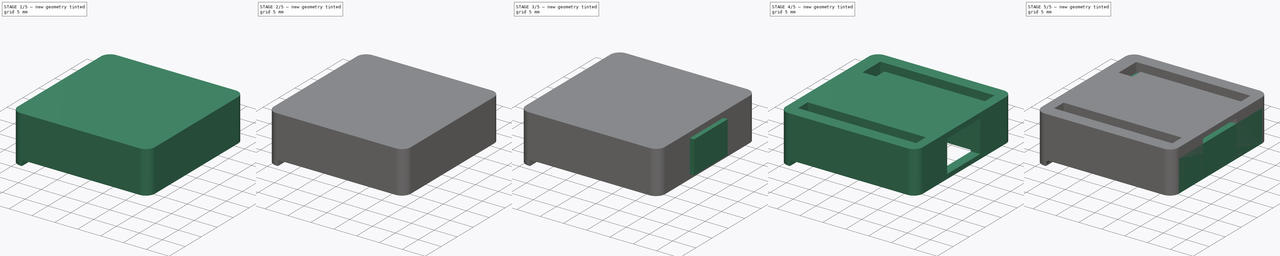
[diagram: build sequence overview — one tinted view per stage of 5, left to right]
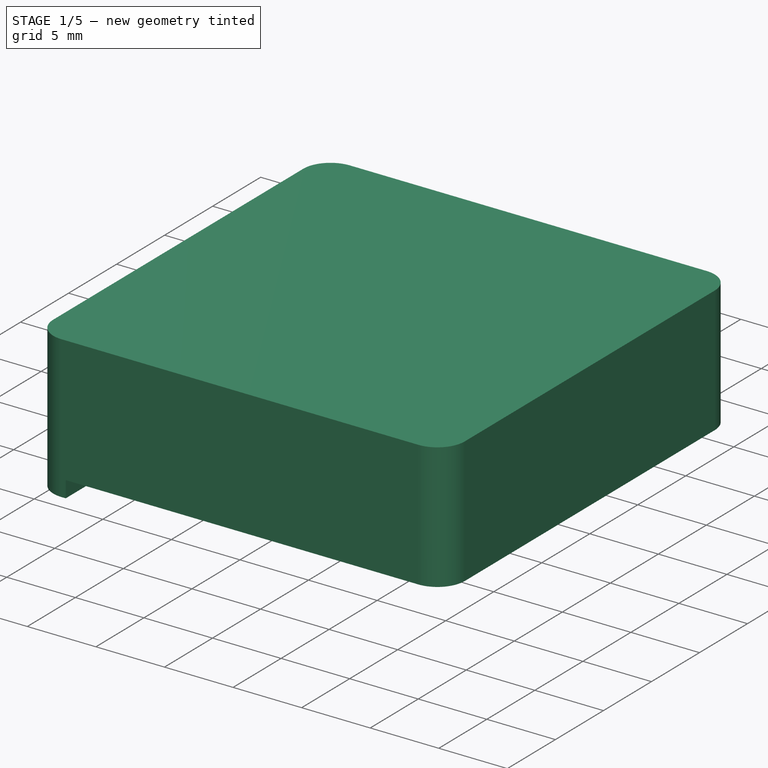
[diagram: stage 1 of 5 — iso view after this stage's code; geometry added in this stage tinted green]
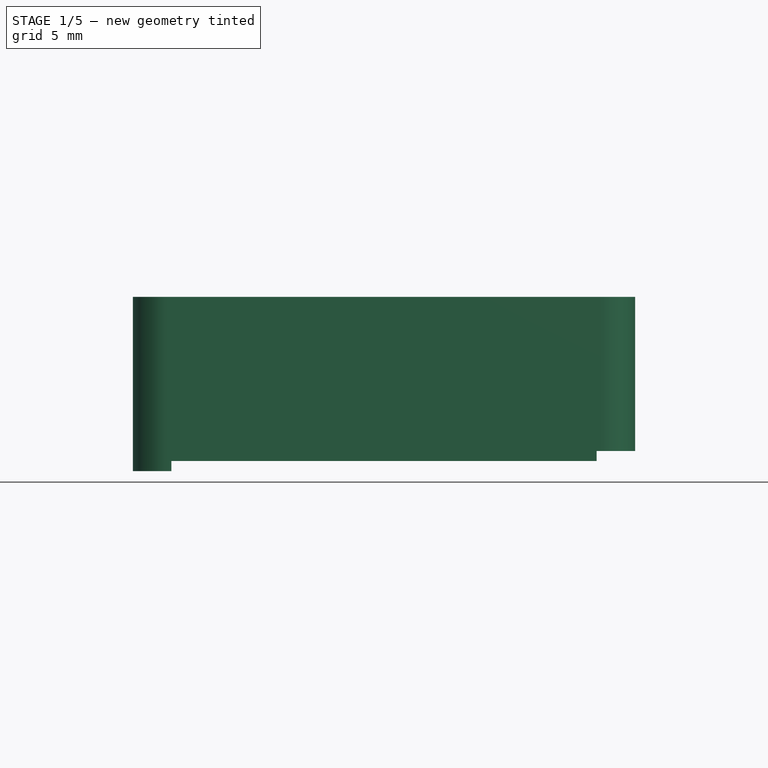
[diagram: stage 1 of 5 — front view after this stage's code; geometry added in this stage tinted green]
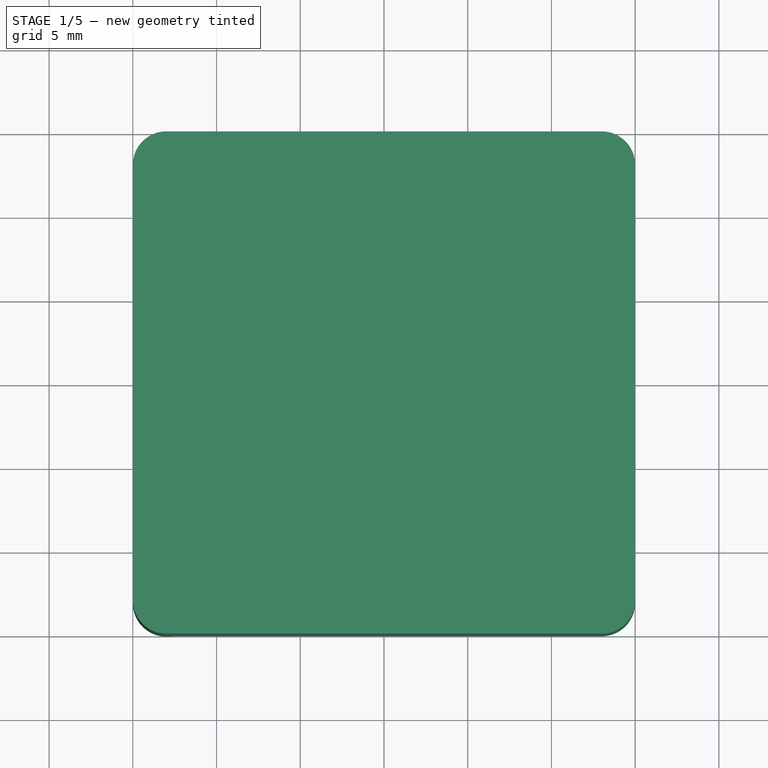
[diagram: stage 1 of 5 — top view after this stage's code; geometry added in this stage tinted green]
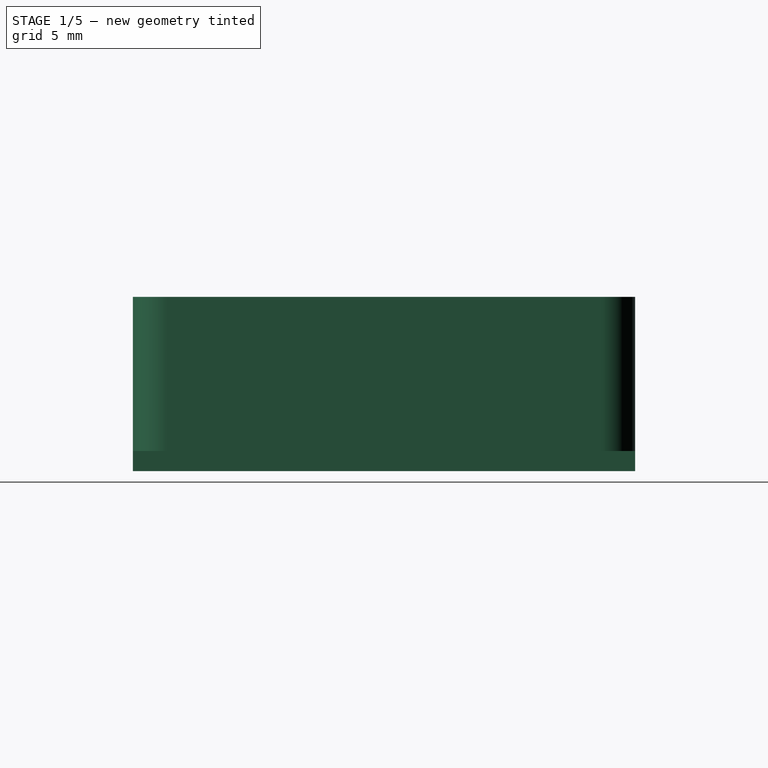
[diagram: stage 1 of 5 — right view after this stage's code; geometry added in this stage tinted green]
FCSTD DOCUMENT  (FreeCAD 0.16R)
Label: Pinguino_SMD-2550
License: All rights reserved
LicenseURL: http://en.wikipedia.org/wiki/All_rights_reserved
objects: Part::Feature×15, Sketcher::SketchObject×11, PartDesign::Pad×8, App::DocumentObjectGroup×2, Part::Extrusion×2, Part::Fillet×2, Part::Part2DObjectPython×1, Part::Offset×1, Part::MultiFuse×1, Part::Cut×1
note: 50 computed .brp shape members not serialized (recipe doc carries the construction recipe); baked Part::Feature solids carry a one-line shape summary decoded from their .brp

FEATURE [Part::Extrusion] Extrude001  label="Positivo"
  Base = -> Rectangle
  Dir = (0,0,9.2)
  Solid = true
FEATURE [Sketcher::SketchObject] Sketch003  label="cap"
  Placement = pos=(-43.18,33.528,0) rot=(0,0,1;0rad)
  Support = -> Pcb [Face27]
  sketch-geometry (16):
    g0: LineSegment StartX=42 StartY=-24.3 StartZ=0 EndX=45.4 EndY=-24.3 EndZ=0
    g1: LineSegment StartX=45.4 StartY=-24.3 StartZ=0 EndX=45.4 EndY=-26.1 EndZ=0
    g2: LineSegment StartX=45.4 StartY=-26.1 StartZ=0 EndX=42 EndY=-26.1 EndZ=0
    g3: LineSegment StartX=42 StartY=-26.1 StartZ=0 EndX=42 EndY=-24.3 EndZ=0
    g4: LineSegment StartX=50.2 StartY=-24.2 StartZ=0 EndX=46.8 EndY=-24.2 EndZ=0
    g5: LineSegment StartX=46.8 StartY=-24.2 StartZ=0 EndX=46.8 EndY=-26.1 EndZ=0
    g6: LineSegment StartX=46.8 StartY=-26.1 StartZ=0 EndX=50.2 EndY=-26.1 EndZ=0
    g7: LineSegment StartX=50.2 StartY=-26.1 StartZ=0 EndX=50.2 EndY=-24.2 EndZ=0
    g8: LineSegment StartX=35.4 StartY=-40.5 StartZ=0 EndX=38.8 EndY=-40.5 EndZ=0
    g9: LineSegment StartX=38.8 StartY=-40.5 StartZ=0 EndX=38.8 EndY=-42.3 EndZ=0
    g10: LineSegment StartX=38.8 StartY=-42.3 StartZ=0 EndX=35.4 EndY=-42.3 EndZ=0
    g11: LineSegment StartX=35.4 StartY=-42.3 StartZ=0 EndX=35.4 EndY=-40.5 EndZ=0
    g12: LineSegment StartX=51.8 StartY=-27.3 StartZ=0 EndX=55.2 EndY=-27.3 EndZ=0
    g13: LineSegment StartX=55.2 StartY=-27.3 StartZ=0 EndX=55.2 EndY=-25.5 EndZ=0
    g14: LineSegment StartX=55.2 StartY=-25.5 StartZ=0 EndX=51.8 EndY=-25.5 EndZ=0
    g15: LineSegment StartX=51.8 StartY=-25.5 StartZ=0 EndX=51.8 EndY=-27.3 EndZ=0
  constraints (32):
    c: Coincident(g0,g1)
    c: Coincident(g1,g2)
    c: Coincident(g2,g3)
    c: Coincident(g3,g0)
    c: Horizontal(g0)
    c: Horizontal(g2)
    c: Vertical(g1)
    c: Vertical(g3)
    c: Coincident(g4,g5)
    c: Coincident(g5,g6)
    c: Coincident(g6,g7)
    c: Coincident(g7,g4)
    c: Horizontal(g4)
    c: Horizontal(g6)
    c: Vertical(g5)
    c: Vertical(g7)
    c: Coincident(g8,g9)
    c: Coincident(g9,g10)
    c: Coincident(g10,g11)
    c: Coincident(g11,g8)
    c: Horizontal(g8)
    c: Horizontal(g10)
    c: Vertical(g9)
    c: Vertical(g11)
    c: Coincident(g12,g13)
    c: Coincident(g13,g14)
    c: Coincident(g14,g15)
    c: Coincident(g15,g12)
    c: Horizontal(g12)
    c: Horizontal(g14)
    c: Vertical(g13)
    c: Vertical(g15)
FEATURE [PartDesign::Pad] Pad
  Length = 1
  Length2 = 100
  Placement = pos=(-43.18,33.528,0) rot=(0,0,1;0rad)
  Sketch = -> Sketch003
  Type = 0
FEATURE [Sketcher::SketchObject] Sketch010
  ExternalGeometry = -> [Extrude001]
  Placement = pos=(0,0,-1) rot=(1,0,0;3.14159rad)
  Support = -> Extrude001 [Face9]
  sketch-geometry (6):
    g0: LineSegment StartX=-15 StartY=13 StartZ=0 EndX=-15 EndY=-13 EndZ=0
    g1: ArcOfCircle CenterX=-13 CenterY=-13 CenterZ=0 NormalX=0 NormalY=0 NormalZ=1 Radius=2 StartAngle=3.14159 EndAngle=4.71239
    g2: ArcOfCircle CenterX=-13 CenterY=13 CenterZ=0 NormalX=0 NormalY=0 NormalZ=1 Radius=2 StartAngle=1.5708 EndAngle=3.14159
    g3: LineSegment StartX=-13 StartY=15 StartZ=0 EndX=-12.7 EndY=15 EndZ=0
    g4: LineSegment StartX=-13 StartY=-15 StartZ=0 EndX=-12.7 EndY=-15 EndZ=0
    g5: LineSegment StartX=-12.7 StartY=-15 StartZ=0 EndX=-12.7 EndY=15 EndZ=0
  constraints (15):
    c: Coincident(g0,g-5)
    c: Coincident(g0,g-4)
    c: Coincident(g1,g-4)
    c: Coincident(g1,g0)
    c: Coincident(g1,g-4)
    c: Coincident(g2,g-5)
    c: Coincident(g2,g0)
    c: Coincident(g2,g-5)
    c: Coincident(g3,g2)
    c: Horizontal(g3)
    c: Coincident(g4,g1)
    c: Horizontal(g4)
    c: Coincident(g5,g4)
    c: Coincident(g5,g3)
    c: Vertical(g5)
FEATURE [PartDesign::Pad] Pad007  label="Positivo001"
  Length = 1.2
  Length2 = 100
  Sketch = -> Sketch010
  Type = 0
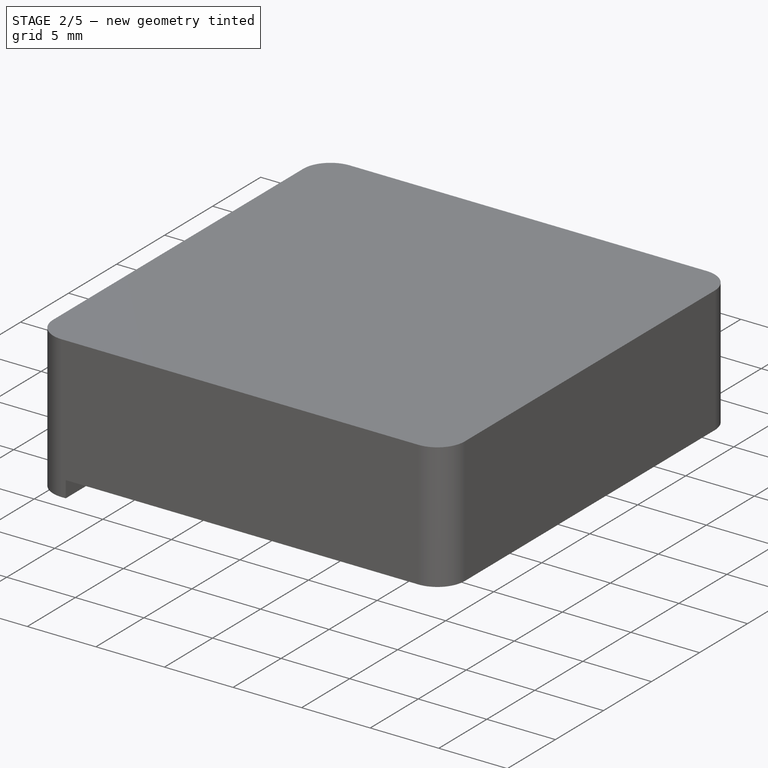
[diagram: stage 2 of 5 — iso view after this stage's code; geometry added in this stage tinted green]
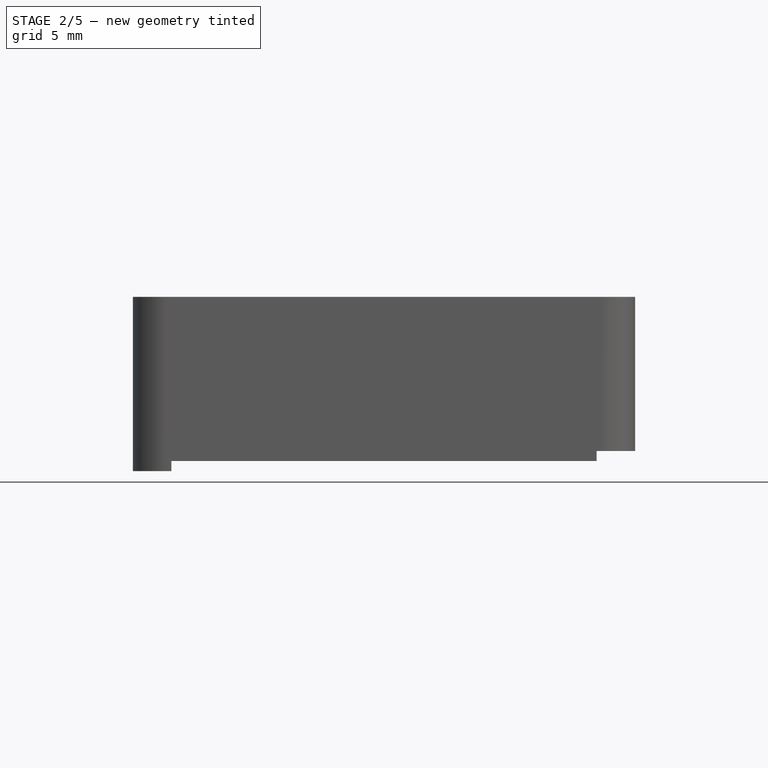
[diagram: stage 2 of 5 — front view after this stage's code; geometry added in this stage tinted green]
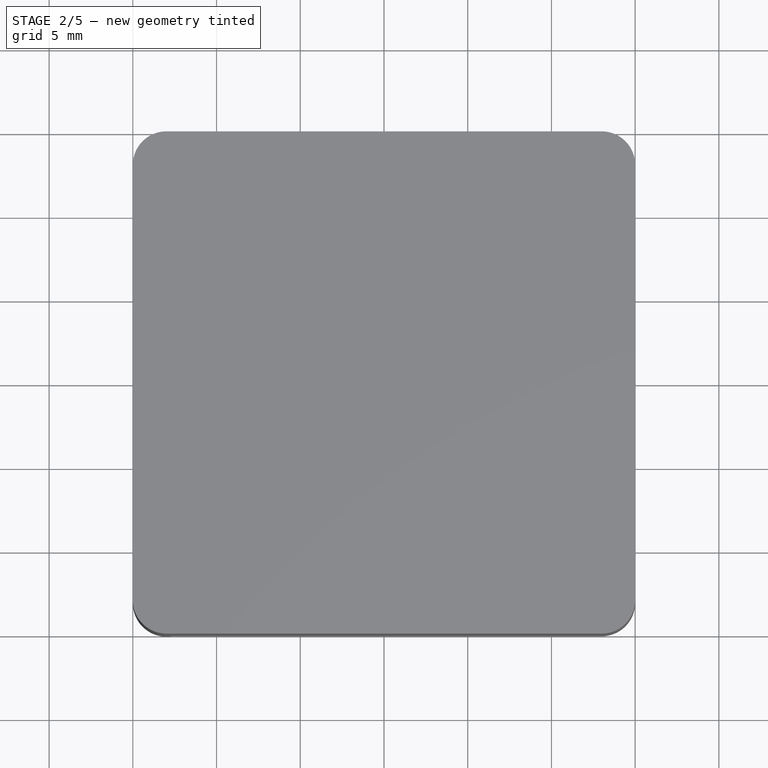
[diagram: stage 2 of 5 — top view after this stage's code; geometry added in this stage tinted green]
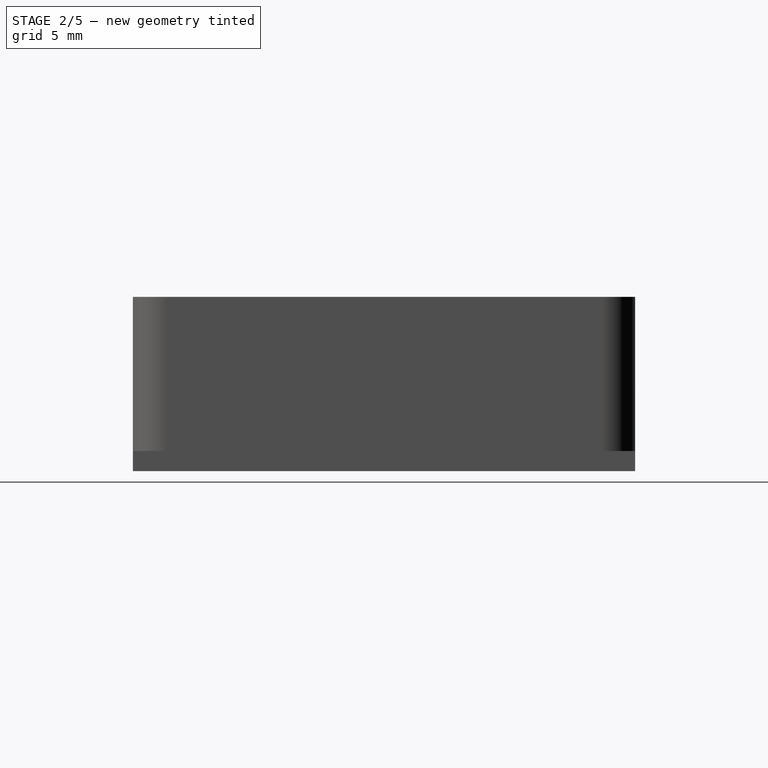
[diagram: stage 2 of 5 — right view after this stage's code; geometry added in this stage tinted green]
FEATURE [Sketcher::SketchObject] Sketch004  label="res"
  Placement = pos=(-43.18,33.528,0) rot=(0,0,1;0rad)
  Support = -> Pad [Face4]
  sketch-geometry (12):
    g0: LineSegment StartX=31.2 StartY=-28.5 StartZ=0 EndX=35.2 EndY=-28.5 EndZ=0
    g1: LineSegment StartX=35.2 StartY=-28.5 StartZ=0 EndX=35.2 EndY=-30.8 EndZ=0
    g2: LineSegment StartX=35.2 StartY=-30.8 StartZ=0 EndX=31.2 EndY=-30.8 EndZ=0
    g3: LineSegment StartX=31.2 StartY=-30.8 StartZ=0 EndX=31.2 EndY=-28.5 EndZ=0
    g4: LineSegment StartX=31.3 StartY=-32.1 StartZ=0 EndX=35.1 EndY=-32.1 EndZ=0
    g5: LineSegment StartX=35.1 StartY=-32.1 StartZ=0 EndX=35.1 EndY=-34.3 EndZ=0
    g6: LineSegment StartX=35.1 StartY=-34.3 StartZ=0 EndX=31.3 EndY=-34.3 EndZ=0
    g7: LineSegment StartX=31.3 StartY=-34.3 StartZ=0 EndX=31.3 EndY=-32.1 EndZ=0
    g8: LineSegment StartX=31.3 StartY=-35.9 StartZ=0 EndX=35.1 EndY=-35.9 EndZ=0
    g9: LineSegment StartX=35.1 StartY=-35.9 StartZ=0 EndX=35.1 EndY=-38.2 EndZ=0
    g10: LineSegment StartX=35.1 StartY=-38.2 StartZ=0 EndX=31.3 EndY=-38.2 EndZ=0
    g11: LineSegment StartX=31.3 StartY=-38.2 StartZ=0 EndX=31.3 EndY=-35.9 EndZ=0
  constraints (24):
    c: Coincident(g0,g1)
    c: Coincident(g1,g2)
    c: Coincident(g2,g3)
    c: Coincident(g3,g0)
    c: Horizontal(g0)
    c: Horizontal(g2)
    c: Vertical(g1)
    c: Vertical(g3)
    c: Coincident(g4,g5)
    c: Coincident(g5,g6)
    c: Coincident(g6,g7)
    c: Coincident(g7,g4)
    c: Horizontal(g4)
    c: Horizontal(g6)
    c: Vertical(g5)
    c: Vertical(g7)
    c: Coincident(g8,g9)
    c: Coincident(g9,g10)
    c: Coincident(g10,g11)
    c: Coincident(g11,g8)
    c: Horizontal(g8)
    c: Horizontal(g10)
    c: Vertical(g9)
    c: Vertical(g11)
FEATURE [PartDesign::Pad] Pad001
  Length = 1
  Length2 = 100
  Placement = pos=(-43.18,33.528,0) rot=(0,0,1;0rad)
  Sketch = -> Sketch004
  Type = 0
FEATURE [Sketcher::SketchObject] Sketch005  label="capa"
  Placement = pos=(-43.18,33.528,0) rot=(0,0,1;0rad)
  Support = -> Pad001 [Face4]
  sketch-geometry (1):
    g0: Circle CenterX=39.1493 CenterY=-33.2 CenterZ=0 NormalX=0 NormalY=0 NormalZ=1 Radius=4.54251
FEATURE [PartDesign::Pad] Pad002
  Length = 7
  Length2 = 100
  Placement = pos=(-43.18,33.528,0) rot=(0,0,1;0rad)
  Sketch = -> Sketch005
  Type = 0
FEATURE [Sketcher::SketchObject] Sketch006  label="crystal"
  Placement = pos=(-43.18,33.528,0) rot=(0,0,1;0rad)
  Support = -> Pad002 [Face4]
  sketch-geometry (4):
    g0: LineSegment StartX=42.8 StartY=-30.5 StartZ=0 EndX=46.5 EndY=-30.5 EndZ=0
    g1: LineSegment StartX=46.5 StartY=-30.5 StartZ=0 EndX=46.5 EndY=-35.9 EndZ=0
    g2: LineSegment StartX=46.5 StartY=-35.9 StartZ=0 EndX=42.8 EndY=-35.9 EndZ=0
    g3: LineSegment StartX=42.8 StartY=-35.9 StartZ=0 EndX=42.8 EndY=-30.5 EndZ=0
  constraints (8):
    c: Coincident(g0,g1)
    c: Coincident(g1,g2)
    c: Coincident(g2,g3)
    c: Coincident(g3,g0)
    c: Horizontal(g0)
    c: Horizontal(g2)
    c: Vertical(g1)
    c: Vertical(g3)
FEATURE [PartDesign::Pad] Pad003
  Length = 2
  Length2 = 100
  Placement = pos=(-43.18,33.528,0) rot=(0,0,1;0rad)
  Sketch = -> Sketch006
  Type = 0
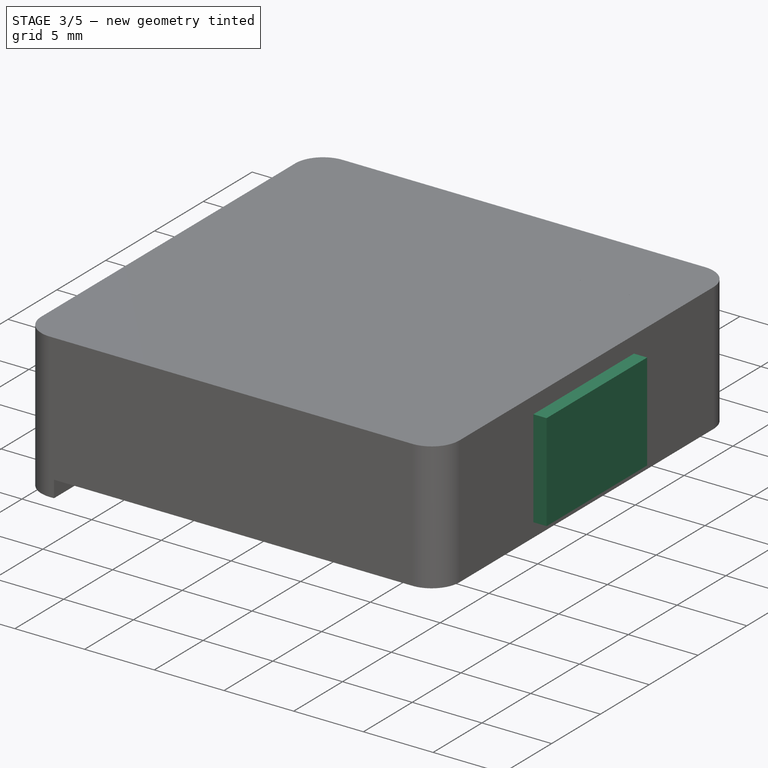
[diagram: stage 3 of 5 — iso view after this stage's code; geometry added in this stage tinted green]
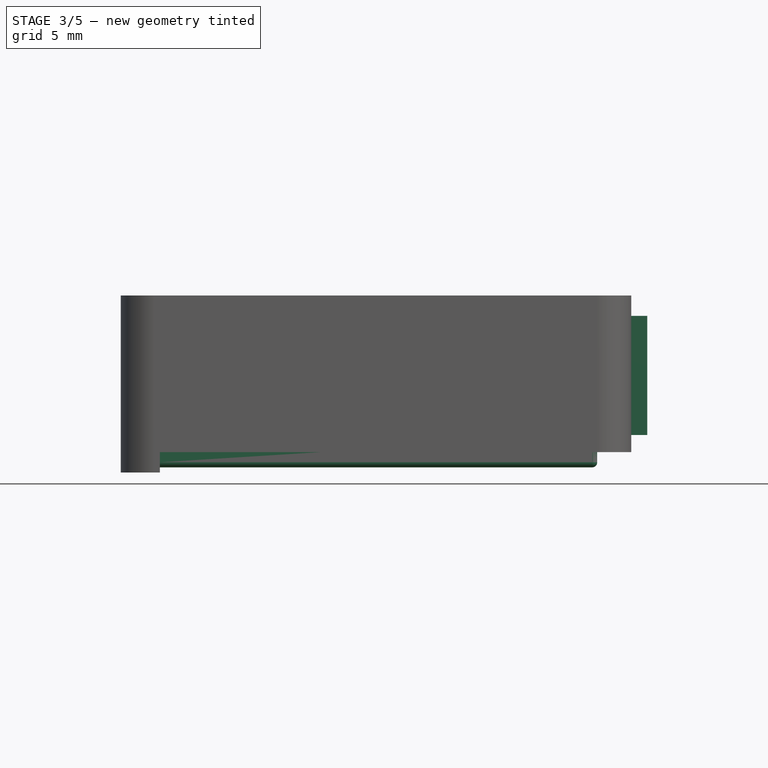
[diagram: stage 3 of 5 — front view after this stage's code; geometry added in this stage tinted green]
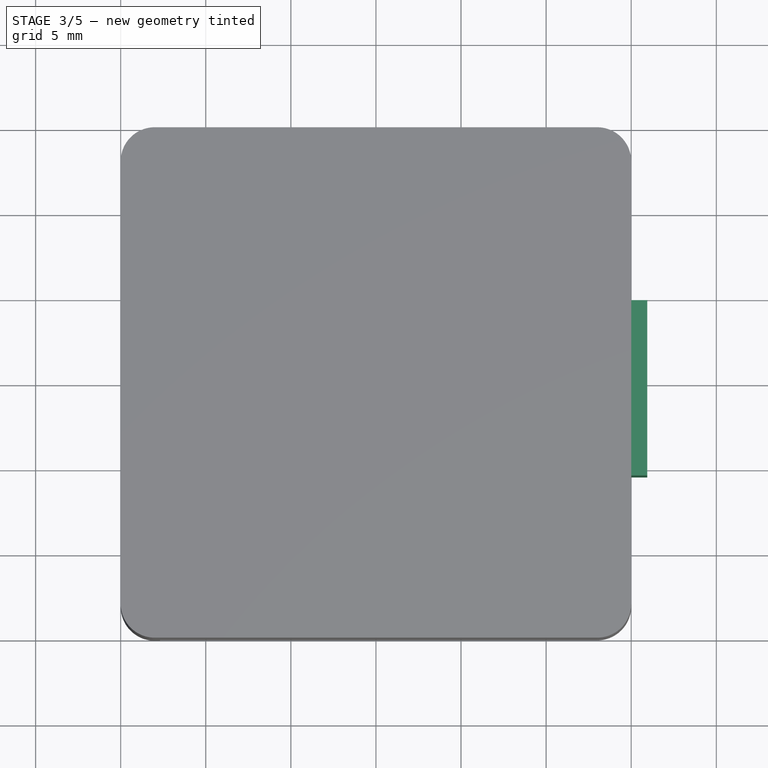
[diagram: stage 3 of 5 — top view after this stage's code; geometry added in this stage tinted green]
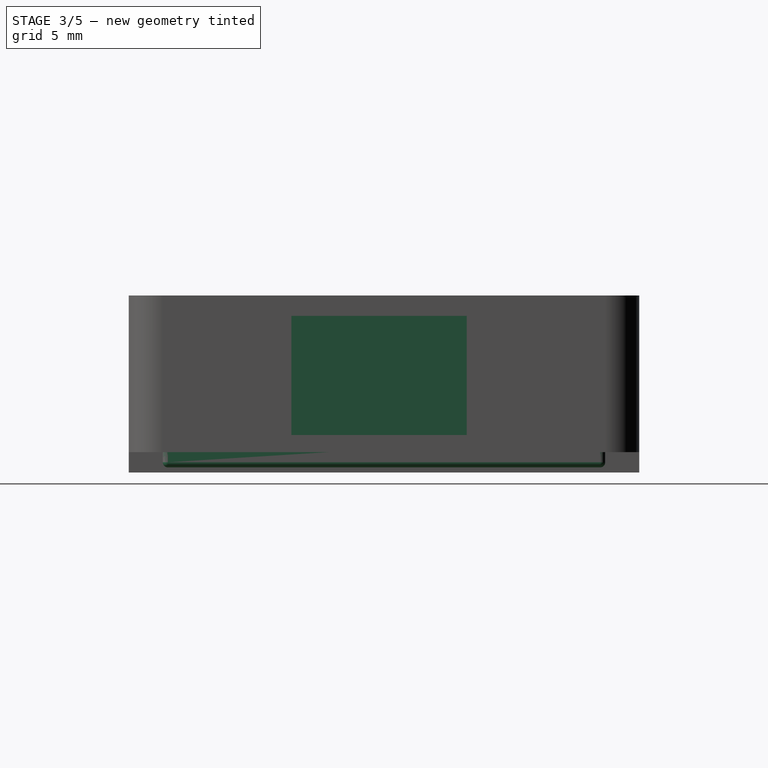
[diagram: stage 3 of 5 — right view after this stage's code; geometry added in this stage tinted green]
FEATURE [Part::Offset] Offset  label="Pcb-1_Inch-Offset"
  Fill = false
  Intersection = false
  Join = 0
  Mode = 0
  SelfIntersection = false
  Source = -> Pcb
  Value = 0.3
FEATURE [Sketcher::SketchObject] Sketch007  label="b_usb"
  Placement = pos=(-43.18,33.528,0) rot=(0,0,1;0rad)
  Support = -> Pad003 [Face4]
  sketch-geometry (4):
    g0: LineSegment StartX=47 StartY=-28.6679 StartZ=0 EndX=59.1258 EndY=-28.6679 EndZ=0
    g1: LineSegment StartX=59.1258 StartY=-28.6679 StartZ=0 EndX=59.1258 EndY=-38.9679 EndZ=0
    g2: LineSegment StartX=59.1258 StartY=-38.9679 StartZ=0 EndX=47 EndY=-38.9679 EndZ=0
    g3: LineSegment StartX=47 StartY=-38.9679 StartZ=0 EndX=47 EndY=-28.6679 EndZ=0
  constraints (8):
    c: Coincident(g0,g1)
    c: Coincident(g1,g2)
    c: Coincident(g2,g3)
    c: Coincident(g3,g0)
    c: Horizontal(g0)
    c: Horizontal(g2)
    c: Vertical(g1)
    c: Vertical(g3)
FEATURE [PartDesign::Pad] Pad004
  Length = 7
  Length2 = 100
  Placement = pos=(-43.18,33.528,0) rot=(0,0,1;0rad)
  Sketch = -> Sketch007
  Type = 0
FEATURE [Sketcher::SketchObject] Sketch008
  ExternalGeometry = -> [Pad004]
  Placement = pos=(-43.18,33.528,0) rot=(0,0,1;0rad)
  Support = -> Pad004 [Face4]
  sketch-geometry (39):
    g0: LineSegment [constr] StartX=31.8643 StartY=-44.323 StartZ=0 EndX=31.8643 EndY=-42.823 EndZ=0
    g1: LineSegment [constr] StartX=31.8643 StartY=-44.323 StartZ=0 EndX=31.8643 EndY=-45.823 EndZ=0
    g2: LineSegment [constr] StartX=31.8643 StartY=-44.323 StartZ=0 EndX=30.3643 EndY=-44.323 EndZ=0
    g3: LineSegment [constr] StartX=54.7243 StartY=-44.323 StartZ=0 EndX=54.7243 EndY=-42.823 EndZ=0
    g4: LineSegment [constr] StartX=54.7243 StartY=-44.323 StartZ=0 EndX=56.2243 EndY=-44.323 EndZ=0
    g5: LineSegment [constr] StartX=54.7243 StartY=-44.323 StartZ=0 EndX=54.7243 EndY=-45.823 EndZ=0
    g6: LineSegment [constr] StartX=32.639 StartY=-25.273 StartZ=0 EndX=32.639 EndY=-26.773 EndZ=0
    g7: LineSegment [constr] StartX=32.639 StartY=-25.273 StartZ=0 EndX=34.139 EndY=-25.273 EndZ=0
    g8: LineSegment [constr] StartX=32.639 StartY=-25.273 StartZ=0 EndX=31.139 EndY=-25.273 EndZ=0
    g9: LineSegment [constr] StartX=32.639 StartY=-22.733 StartZ=0 EndX=31.139 EndY=-22.733 EndZ=0
    g10: LineSegment [constr] StartX=32.639 StartY=-22.733 StartZ=0 EndX=32.639 EndY=-21.233 EndZ=0
    g11: LineSegment [constr] StartX=32.639 StartY=-22.733 StartZ=0 EndX=32.639 EndY=-24.233 EndZ=0
    g12: LineSegment [constr] StartX=54.6 StartY=-22.7208 StartZ=0 EndX=54.6 EndY=-21.2203 EndZ=0
    g13: LineSegment [constr] StartX=54.6 StartY=-22.7208 StartZ=0 EndX=56.1252 EndY=-22.7208 EndZ=0
    g14: LineSegment [constr] StartX=54.6 StartY=-22.7208 StartZ=0 EndX=54.6 EndY=-24.2297 EndZ=0
    g15: LineSegment StartX=30.3643 StartY=-44.323 StartZ=0 EndX=30.3643 EndY=-42.823 EndZ=0
    g16: LineSegment StartX=30.3643 StartY=-42.823 StartZ=0 EndX=31.8643 EndY=-42.823 EndZ=0
    g17: LineSegment StartX=31.8643 StartY=-42.823 StartZ=0 EndX=54.7243 EndY=-42.823 EndZ=0
    g18: LineSegment StartX=54.7243 StartY=-42.823 StartZ=0 EndX=56.2243 EndY=-42.823 EndZ=0
    g19: LineSegment StartX=56.2243 StartY=-42.823 StartZ=0 EndX=56.2243 EndY=-44.323 EndZ=0
    g20: LineSegment StartX=56.2243 StartY=-44.323 StartZ=0 EndX=56.2243 EndY=-45.823 EndZ=0
    g21: LineSegment StartX=56.2243 StartY=-45.823 StartZ=0 EndX=54.7243 EndY=-45.823 EndZ=0
    g22: LineSegment StartX=54.7243 StartY=-45.823 StartZ=0 EndX=31.8643 EndY=-45.823 EndZ=0
    g23: LineSegment StartX=31.8643 StartY=-45.823 StartZ=0 EndX=30.3643 EndY=-45.823 EndZ=0
    g24: LineSegment StartX=30.3643 StartY=-45.823 StartZ=0 EndX=30.3643 EndY=-44.323 EndZ=0
    g25: LineSegment StartX=32.639 StartY=-26.773 StartZ=0 EndX=31.139 EndY=-26.773 EndZ=0
    g26: LineSegment StartX=31.139 StartY=-26.773 StartZ=0 EndX=31.139 EndY=-25.273 EndZ=0
    g27: LineSegment StartX=31.139 StartY=-25.273 StartZ=0 EndX=31.139 EndY=-22.733 EndZ=0
    g28: LineSegment StartX=31.139 StartY=-22.733 StartZ=0 EndX=31.139 EndY=-21.233 EndZ=0
    g29: LineSegment StartX=31.139 StartY=-21.233 StartZ=0 EndX=32.639 EndY=-21.233 EndZ=0
    g30: LineSegment StartX=32.639 StartY=-21.233 StartZ=0 EndX=54.5973 EndY=-21.2203 EndZ=0
    g31: LineSegment StartX=54.5973 StartY=-21.2203 StartZ=0 EndX=56.1252 EndY=-21.2203 EndZ=0
    g32: LineSegment StartX=56.1252 StartY=-21.2203 StartZ=0 EndX=56.1252 EndY=-22.7208 EndZ=0
    g33: LineSegment StartX=56.1252 StartY=-22.7208 StartZ=0 EndX=56.1252 EndY=-24.2297 EndZ=0
    g34: LineSegment StartX=56.1252 StartY=-24.2297 StartZ=0 EndX=54.6 EndY=-24.2297 EndZ=0
    g35: LineSegment StartX=54.6 StartY=-24.2297 StartZ=0 EndX=34.139 EndY=-24.2297 EndZ=0
    g36: LineSegment StartX=34.139 StartY=-24.2297 StartZ=0 EndX=34.139 EndY=-25.273 EndZ=0
    g37: LineSegment StartX=34.139 StartY=-25.273 StartZ=0 EndX=34.139 EndY=-26.773 EndZ=0
    g38: LineSegment StartX=34.139 StartY=-26.773 StartZ=0 EndX=32.639 EndY=-26.773 EndZ=0
  constraints (86):
    c: Vertical(g0)
    c: Coincident(g0,g-3)
    c: Coincident(g1,g0)
    c: Vertical(g1)
    c: Coincident(g2,g0)
    c: Horizontal(g2)
    c: Coincident(g3,g-4)
    c: Vertical(g3)
    c: Coincident(g4,g3)
    c: Horizontal(g4)
    c: Coincident(g5,g3)
    c: Vertical(g5)
    c: Vertical(g6)
    c: Coincident(g7,g6)
    c: Horizontal(g7)
    c: Horizontal(g8)
    c: Horizontal(g9)
    c: Vertical(g10)
    c: Coincident(g11,g9)
    c: Vertical(g11)
    c: Vertical(g12)
    c: Coincident(g13,g12)
    c: Horizontal(g13)
    c: Coincident(g14,g12)
    c: Vertical(g14)
    c: DistanceY(g0,g0) = 1.5
    c: Equal(g0,g2)
    c: Equal(g2,g1)
    c: Equal(g1,g5)
    c: Equal(g5,g4)
    c: Equal(g4,g3)
    c: Equal(g3,g7)
    c: Equal(g7,g6)
    c: Equal(g6,g8)
    c: Coincident(g2,g15)
    c: Vertical(g15)
    c: Coincident(g15,g16)
    c: Coincident(g16,g0)
    c: Horizontal(g16)
    c: Coincident(g16,g17)
    c: Coincident(g17,g3)
    c: Coincident(g17,g18)
    c: Horizontal(g18)
    c: Coincident(g18,g19)
    c: Coincident(g19,g4)
    c: Vertical(g19)
    c: Coincident(g19,g20)
    c: Vertical(g20)
    c: Coincident(g20,g21)
    c: Coincident(g21,g5)
    c: Horizontal(g21)
    c: Coincident(g21,g22)
    c: Coincident(g22,g1)
    c: Coincident(g22,g23)
    c: Horizontal(g23)
    c: Coincident(g23,g24)
    c: Coincident(g24,g15)
    c: Vertical(g24)
    c: Coincident(g6,g25)
    c: Horizontal(g25)
    c: Coincident(g25,g26)
    c: Vertical(g26)
    c: Coincident(g27,g28)
    c: Vertical(g28)
    c: Coincident(g28,g29)
    c: Horizontal(g29)
    c: Coincident(g30,g31)
    c: Horizontal(g31)
    c: Coincident(g31,g32)
    c: Coincident(g32,g13)
    c: Vertical(g32)
    c: Coincident(g32,g33)
    c: Vertical(g33)
    c: Coincident(g33,g34)
    c: Coincident(g34,g14)
    c: Horizontal(g34)
    c: Coincident(g34,g35)
    c: Horizontal(g35)
    c: Coincident(g35,g36)
    c: Coincident(g36,g7)
    c: Vertical(g36)
    c: Coincident(g36,g37)
    c: Vertical(g37)
    c: Coincident(g37,g38)
    c: Coincident(g38,g25)
    c: Horizontal(g38)
FEATURE [PartDesign::Pad] Pad005
  Length = 8.2
  Length2 = 100
  Placement = pos=(-43.18,33.528,0) rot=(0,0,1;0rad)
  Sketch = -> Sketch008
  Type = 0
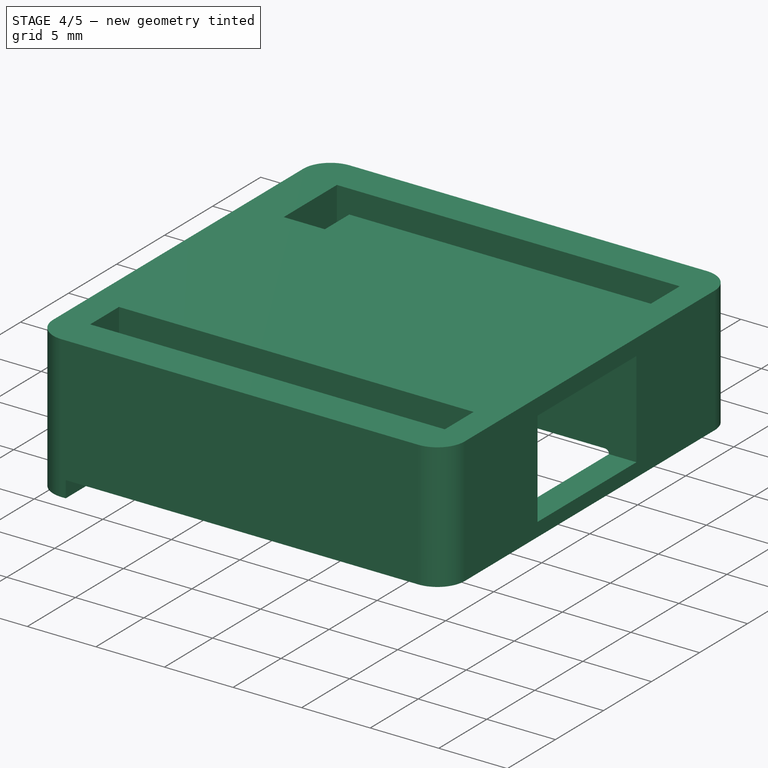
[diagram: stage 4 of 5 — iso view after this stage's code; geometry added in this stage tinted green]
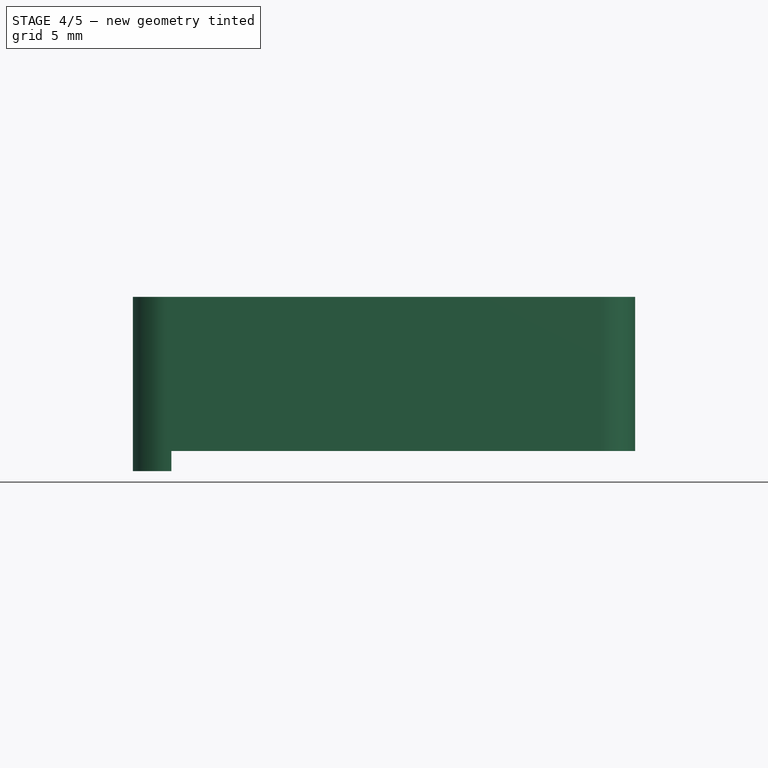
[diagram: stage 4 of 5 — front view after this stage's code; geometry added in this stage tinted green]
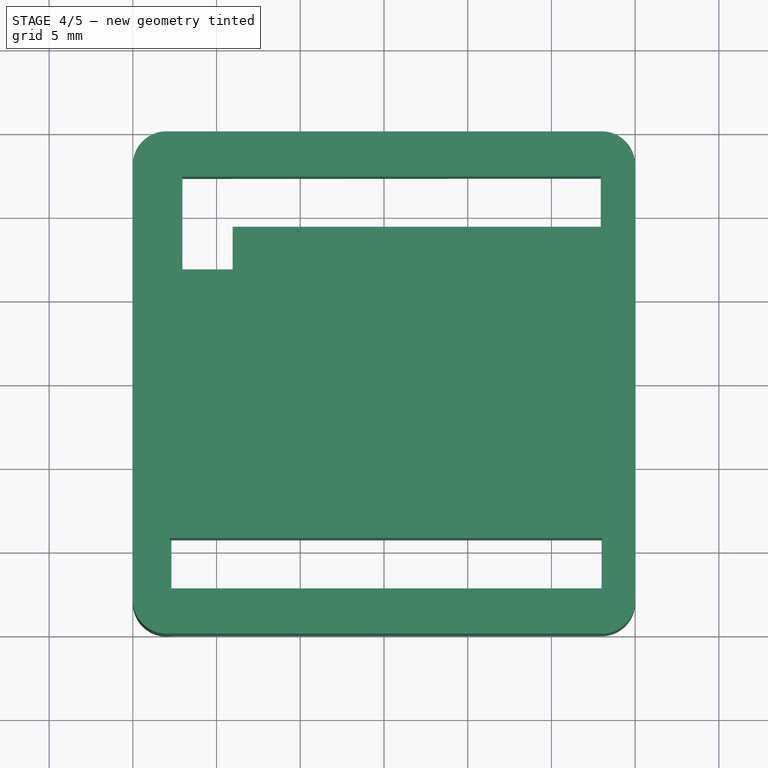
[diagram: stage 4 of 5 — top view after this stage's code; geometry added in this stage tinted green]
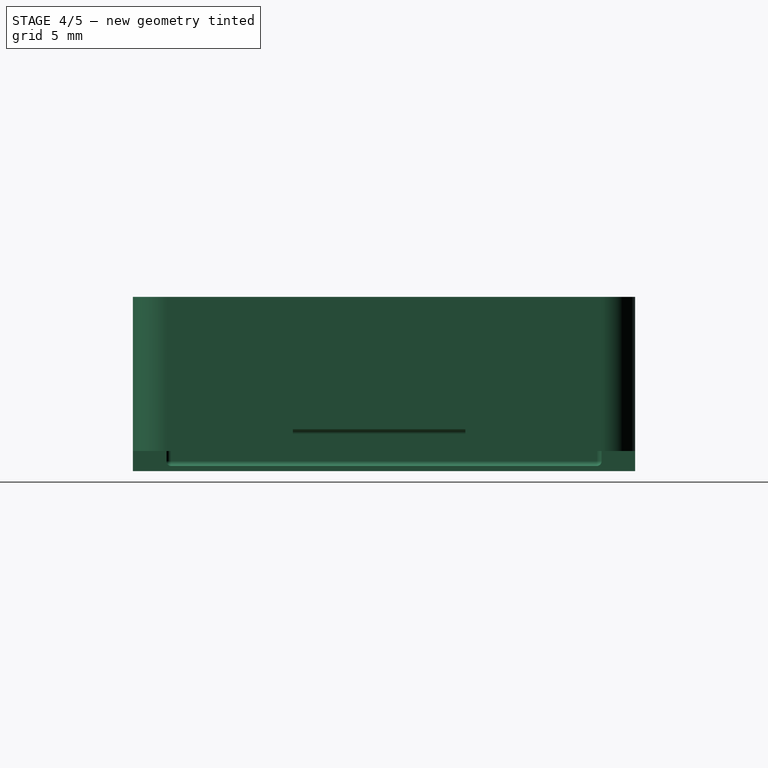
[diagram: stage 4 of 5 — right view after this stage's code; geometry added in this stage tinted green]
FEATURE [Part::MultiFuse] Fusion  label="Neg"
  Shapes = -> [Offset,Pad005]
FEATURE [App::DocumentObjectGroup] Board_Geoms
  Group = -> [Pcb,Sketch,Sketch001,Sketch002,Pad,Pad001,Pad002,Pad003,Pad004,Fusion]
FEATURE [Sketcher::SketchObject] Sketch009  label="tapar_agujeros"
  ExternalGeometry = -> [Fusion]
  Placement = pos=(0,0,-1.9) rot=(1,0,0;3.14159rad)
  Support = -> Fusion [Face3]
  sketch-geometry (22):
    g0: Circle CenterX=7.74446 CenterY=2.18186 CenterZ=0 NormalX=0 NormalY=0 NormalZ=1 Radius=0.44958
    g1: Circle CenterX=7.74446 CenterY=-2.21742 CenterZ=0 NormalX=0 NormalY=0 NormalZ=1 Radius=0.44958
    g2: Circle CenterX=-11.3157 CenterY=10.795 CenterZ=0 NormalX=0 NormalY=0 NormalZ=1 Radius=0.508
    g3: Circle CenterX=-8.7757 CenterY=10.795 CenterZ=0 NormalX=0 NormalY=0 NormalZ=1 Radius=0.508
    g4: Circle CenterX=-6.2357 CenterY=10.795 CenterZ=0 NormalX=0 NormalY=0 NormalZ=1 Radius=0.508
    g5: Circle CenterX=-3.6957 CenterY=10.795 CenterZ=0 NormalX=0 NormalY=0 NormalZ=1 Radius=0.508
    g6: Circle CenterX=-1.1557 CenterY=10.795 CenterZ=0 NormalX=0 NormalY=0 NormalZ=1 Radius=0.508
    g7: Circle CenterX=1.3843 CenterY=10.795 CenterZ=0 NormalX=0 NormalY=0 NormalZ=1 Radius=0.508
    g8: Circle CenterX=3.9243 CenterY=10.795 CenterZ=0 NormalX=0 NormalY=0 NormalZ=1 Radius=0.508
    g9: Circle CenterX=6.4643 CenterY=10.795 CenterZ=0 NormalX=0 NormalY=0 NormalZ=1 Radius=0.508
    g10: Circle CenterX=9.0043 CenterY=10.795 CenterZ=0 NormalX=0 NormalY=0 NormalZ=1 Radius=0.508
    g11: Circle CenterX=11.5443 CenterY=10.795 CenterZ=0 NormalX=0 NormalY=0 NormalZ=1 Radius=0.508
    g12: Circle CenterX=-10.541 CenterY=-8.255 CenterZ=0 NormalX=0 NormalY=0 NormalZ=1 Radius=0.508
    g13: Circle CenterX=-10.541 CenterY=-10.795 CenterZ=0 NormalX=0 NormalY=0 NormalZ=1 Radius=0.508
    g14: Circle CenterX=-6.3627 CenterY=-10.8077 CenterZ=0 NormalX=0 NormalY=0 NormalZ=1 Radius=0.508
    g15: Circle CenterX=-3.8227 CenterY=-10.8077 CenterZ=0 NormalX=0 NormalY=0 NormalZ=1 Radius=0.508
    g16: Circle CenterX=-1.2827 CenterY=-10.8077 CenterZ=0 NormalX=0 NormalY=0 NormalZ=1 Radius=0.508
    g17: Circle CenterX=1.2573 CenterY=-10.8077 CenterZ=0 NormalX=0 NormalY=0 NormalZ=1 Radius=0.508
    g18: Circle CenterX=3.7973 CenterY=-10.8077 CenterZ=0 NormalX=0 NormalY=0 NormalZ=1 Radius=0.508
    g19: Circle CenterX=6.3373 CenterY=-10.8077 CenterZ=0 NormalX=0 NormalY=0 NormalZ=1 Radius=0.508
    g20: Circle CenterX=8.8773 CenterY=-10.8077 CenterZ=0 NormalX=0 NormalY=0 NormalZ=1 Radius=0.508
    g21: Circle CenterX=11.4173 CenterY=-10.8077 CenterZ=0 NormalX=0 NormalY=0 NormalZ=1 Radius=0.508
  constraints (44):
    c: Coincident(g0,g-13)
    c: Equal(g-13,g0)
    c: Coincident(g1,g-14)
    c: Coincident(g2,g-3)
    c: Coincident(g3,g-4)
    c: Coincident(g4,g-5)
    c: Coincident(g5,g-6)
    c: Coincident(g6,g-7)
    c: Coincident(g7,g-8)
    c: Coincident(g8,g-9)
    c: Coincident(g9,g-10)
    c: Coincident(g10,g-11)
    c: Coincident(g11,g-12)
    c: Coincident(g12,g-15)
    c: Coincident(g13,g-16)
    c: Coincident(g14,g-17)
    c: Coincident(g15,g-18)
    c: Coincident(g16,g-19)
    c: Coincident(g17,g-20)
    c: Coincident(g18,g-21)
    c: Coincident(g19,g-22)
    c: Coincident(g20,g-23)
    c: Coincident(g21,g-24)
    c: Equal(g0,g1)
    c: Equal(g2,g-3)
    c: Equal(g-4,g3)
    c: Equal(g-5,g4)
    c: Equal(g-6,g5)
    c: Equal(g-7,g6)
    c: Equal(g-8,g7)
    c: Equal(g-9,g8)
    c: Equal(g-10,g9)
    c: Equal(g-11,g10)
    c: Equal(g-12,g11)
    c: Equal(g12,g-15)
    c: Equal(g-16,g13)
    c: Equal(g-17,g14)
    c: Equal(g-18,g15)
    c: Equal(g-19,g16)
    c: Equal(g-20,g17)
    c: Equal(g-21,g18)
    c: Equal(g-22,g19)
    c: Equal(g-23,g20)
    c: Equal(g-24,g21)
FEATURE [PartDesign::Pad] Pad006  label="Negativo"
  Length = 3
  Length2 = 100
  Reversed = true
  Sketch = -> Sketch009
  Type = 0
FEATURE [Part::Cut] Cut  label="Case1"
  Base = -> Pad007
  Tool = -> Pad006
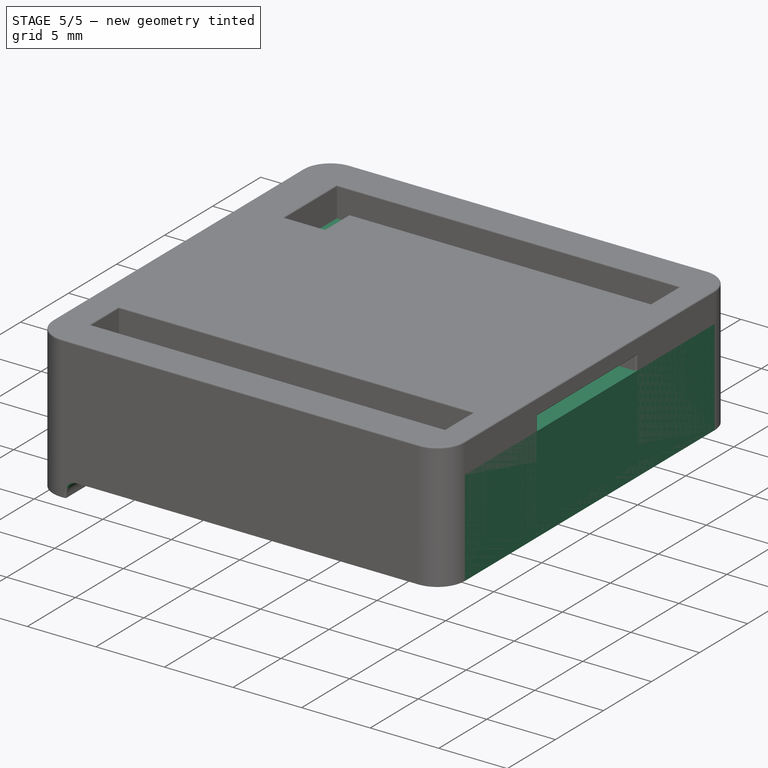
[diagram: stage 5 of 5 — iso view after this stage's code; geometry added in this stage tinted green]
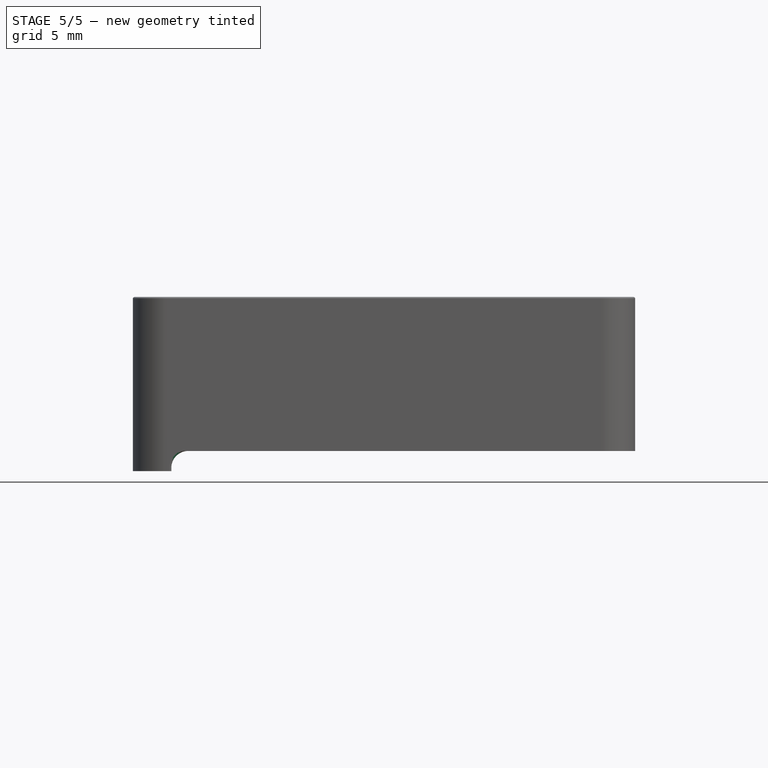
[diagram: stage 5 of 5 — front view after this stage's code; geometry added in this stage tinted green]
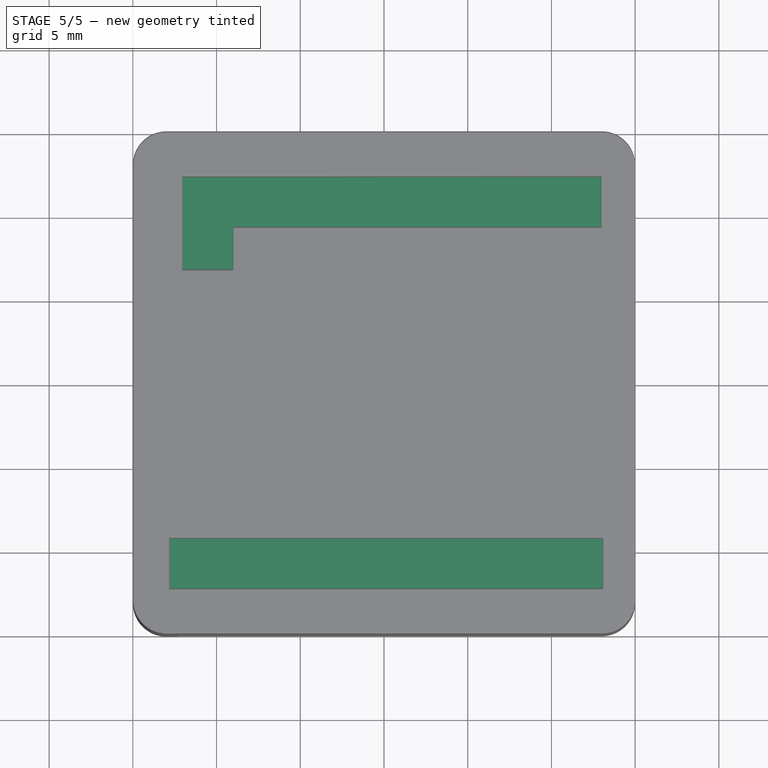
[diagram: stage 5 of 5 — top view after this stage's code; geometry added in this stage tinted green]
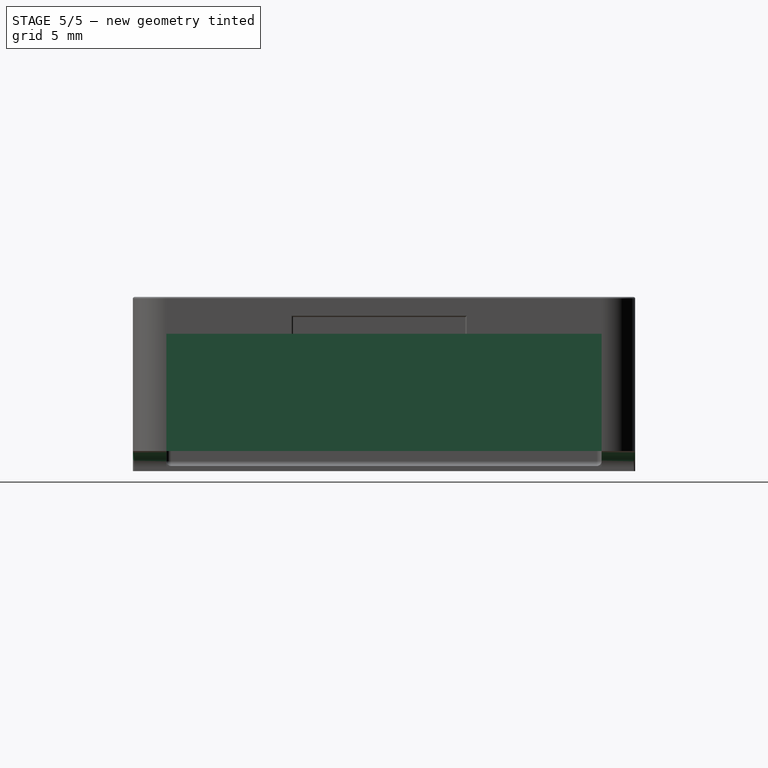
[diagram: stage 5 of 5 — right view after this stage's code; geometry added in this stage tinted green]
FEATURE [Part::Feature] Pcb  label="Pcb-1_Inch"
  Placement = pos=(-43.18,33.528,0) rot=(0,0,1;0rad)
  shape: bbox 25.4 x 25.4 x 1.602 mm, 28 faces (baked)
FEATURE [Part::Feature] Shape  label="switch-"
  Placement = pos=(-9.906,0,-1.6) rot=(0.707107,0.707107,0;3.14159rad)
  shape: bbox 3.6 x 8 x 2.5 mm, 86 faces (baked)
FEATURE [Part::Feature] Shape001  label="Crystal-5035"
  Placement = pos=(1.4605,0.3175,0) rot=(0,0,1;1.5708rad)
  shape: bbox 3.2 x 5 x 1.3 mm, 55 faces (baked)
FEATURE [Part::Feature] Shape002  label="c_1206_h078_"
  Placement = pos=(0.5588,8.3439,0) rot=(0,0,1;3.14159rad)
  shape: bbox 3.05 x 1.52 x 0.78 mm, 28 faces (baked)
FEATURE [Part::Feature] Shape003  label="c_1206_h078_001"
  Placement = pos=(5.2959,8.3693,0) rot=(0,0,1;0rad)
  shape: bbox 3.05 x 1.52 x 0.78 mm, 28 faces (baked)
FEATURE [Part::Feature] Shape004  label="c_1206_h078_002"
  Placement = pos=(10.2997,7.1374,0) rot=(0,0,1;3.14159rad)
  shape: bbox 3.05 x 1.52 x 0.78 mm, 28 faces (baked)
FEATURE [Part::Feature] Shape005  label="c_1206_h078_003"
  Placement = pos=(-6.072,-7.874,0) rot=(0,0,1;0rad)
  shape: bbox 3.05 x 1.52 x 0.78 mm, 28 faces (baked)
FEATURE [Part::Feature] Shape006  label="Led2-0805"
  Placement = pos=(-9.97902,5.528,-1.6) rot=(0,1,0;3.14159rad)
  shape: bbox 2.063 x 0.9063 x 0.8438 mm, 30 faces (baked)
FEATURE [Part::Feature] Shape007  label="Led1-0805"
  Placement = pos=(-9.93,-5.622,-1.6) rot=(1,0,0;3.14159rad)
  shape: bbox 2.063 x 0.9063 x 0.8438 mm, 30 faces (baked)
FEATURE [Part::Feature] Shape009  label="r_1206_h055_"
  Placement = pos=(-9.97204,0.3302,0) rot=(0,0,1;0rad)
  shape: bbox 3.2 x 1.6 x 0.55 mm, 28 faces (baked)
FEATURE [Part::Feature] Shape010  label="r_1206_h055_001"
  Placement = pos=(-9.9568,3.8862,0) rot=(0,0,1;0rad)
  shape: bbox 3.2 x 1.6 x 0.55 mm, 28 faces (baked)
FEATURE [Part::Feature] Shape011  label="r_1206"
  Placement = pos=(-9.9568,-3.556,0) rot=(0,0,1;0rad)
  shape: bbox 3.2 x 1.6 x 0.55 mm, 28 faces (baked)
FEATURE [Part::Feature] Shape012  label="PIC18F4550_SOIC"
  Placement = pos=(2.032,0,-1.6) rot=(1,0,0;3.14159rad)
  shape: bbox 18.42 x 11.18 x 3.505 mm, 402 faces (baked)
FEATURE [Part::Feature] Shape013  label="Capa-6x5"
  Placement = pos=(-4.0132,0.26162,0) rot=(0,0,-1;1.5708rad)
  shape: bbox 8.603 x 8.606 x 5.4 mm, 45 faces (baked)
FEATURE [Part::Feature] Shape018  label="USB-micro_B"
  shape: bbox 9 x 9.9 x 3.967 mm, 543 faces (baked)
FEATURE [App::DocumentObjectGroup] Step_Models
  Group = -> [Shape,Shape001,Shape002,Shape003,Shape004,Shape005,Shape006,Shape007,Shape009,Shape010,Shape011,Shape012,Shape013,Shape018]
FEATURE [Sketcher::SketchObject] Sketch
  Placement = pos=(-43.18,33.528,0) rot=(0,0,1;0rad)
  Support = -> Pcb [Face27]
FEATURE [Sketcher::SketchObject] Sketch001
  Placement = pos=(-43.18,33.528,0) rot=(0,0,1;0rad)
  Support = -> Pcb [Face27]
FEATURE [Sketcher::SketchObject] Sketch002
  Placement = pos=(-43.18,33.528,0) rot=(0,0,1;0rad)
  Support = -> Pcb [Face27]
FEATURE [Part::Part2DObjectPython] Rectangle  # Draft 2D object (typed FeaturePython)
  ChamferSize = 0
  Columns = 1
  FilletRadius = 2
  Height = -30
  Length = 30
  MakeFace = true
  Placement = pos=(-15,15,-1) rot=(0,0,1;0rad)
  Rows = 1
FEATURE [Part::Extrusion] Extrude
  Base = -> Rectangle
  Dir = (0,0,7)
  Solid = true
FEATURE [Part::Fillet] Fillet
  Base = -> Cut
  Edges = 2 edges r=1: [Edge81,Edge87]
FEATURE [Part::Fillet] Fillet001  label="Case-Pinguino_SMD-2550"
  Base = -> Fillet
  Edges = 21 edges r=0.1: [Edge11,Edge34,Edge35,Edge39,Edge40,Edge41,Edge42,Edge43,Edge44,Edge46,Edge47,Edge48,Edge49,Edge50,Edge60,Edge61,Edge62,Edge63,Edge129,Edge138,Edge153]
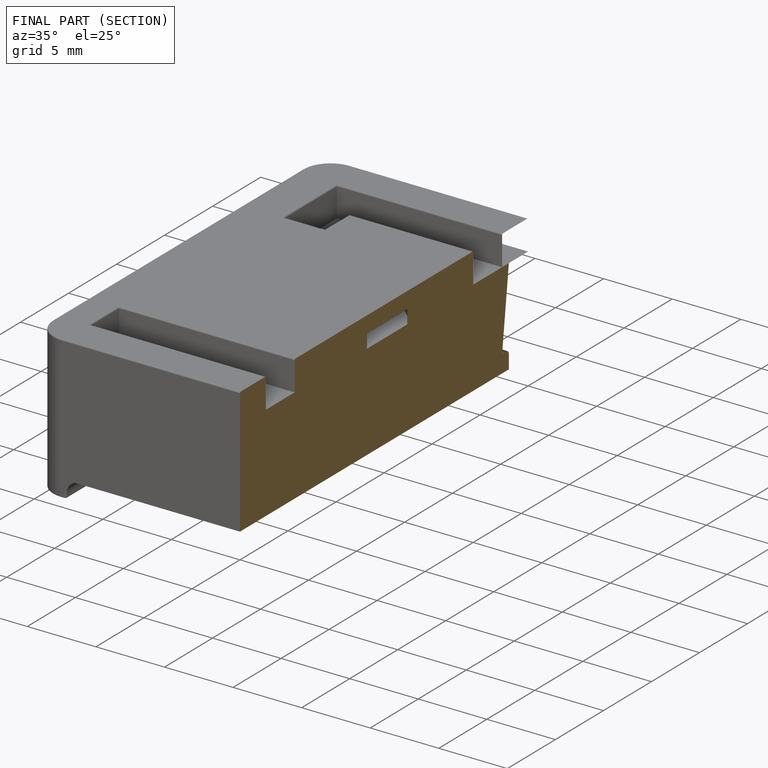
[diagram: finished part — half-section view (interior)]
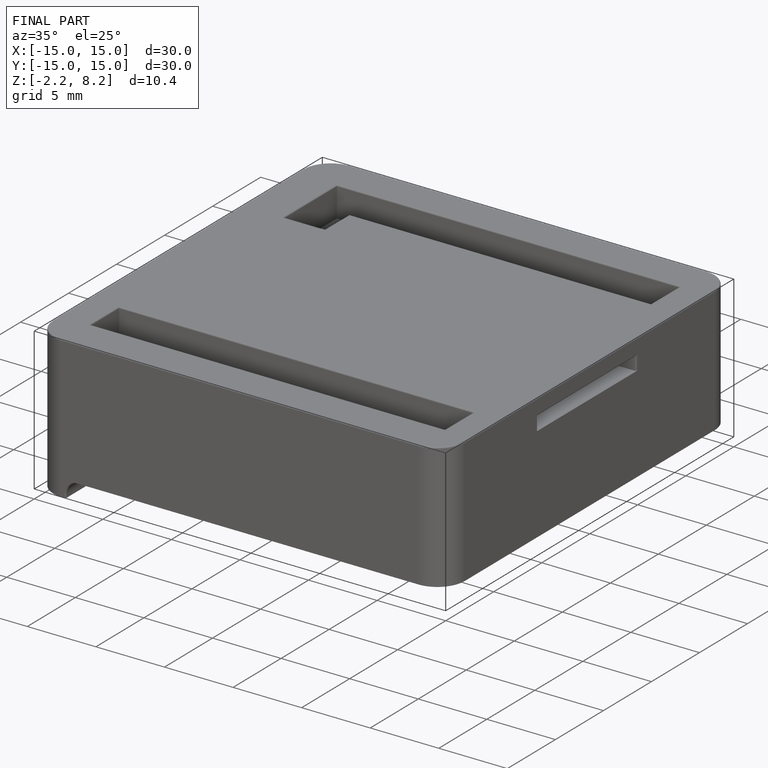
[diagram: finished part — iso view with bounding-box wireframe]
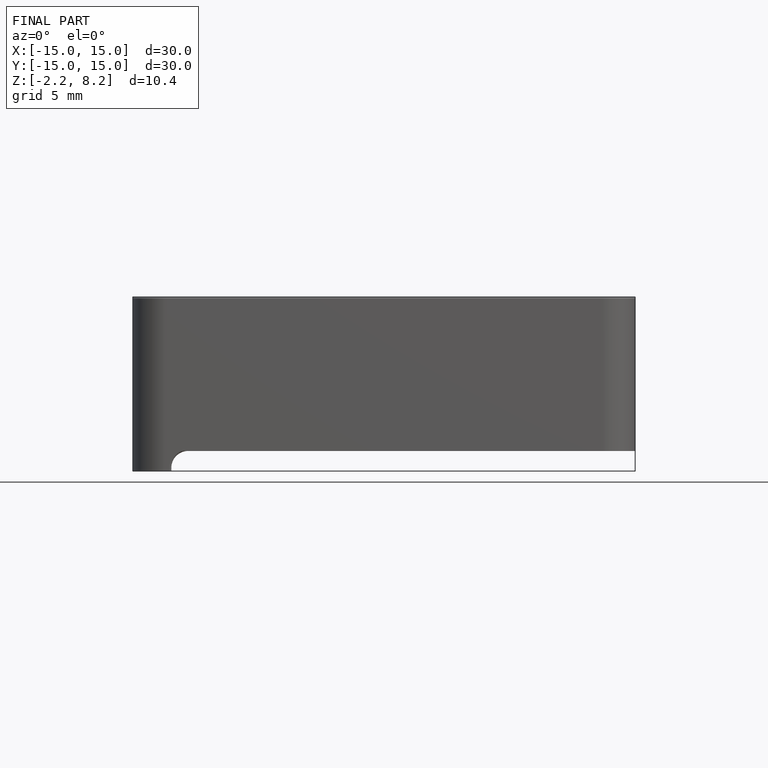
[diagram: finished part — front view with bounding-box wireframe]
